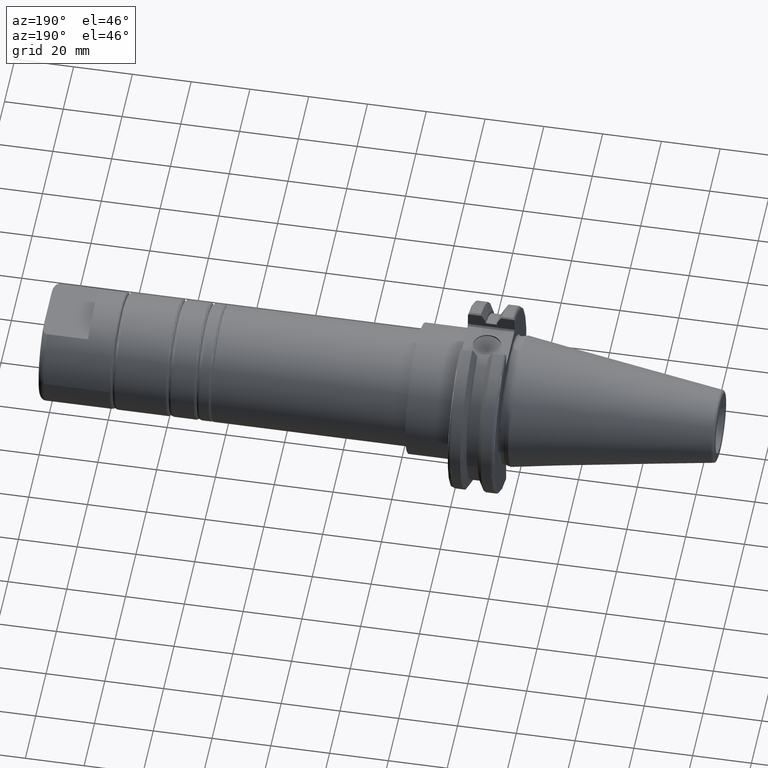
[diagram: clean part render]
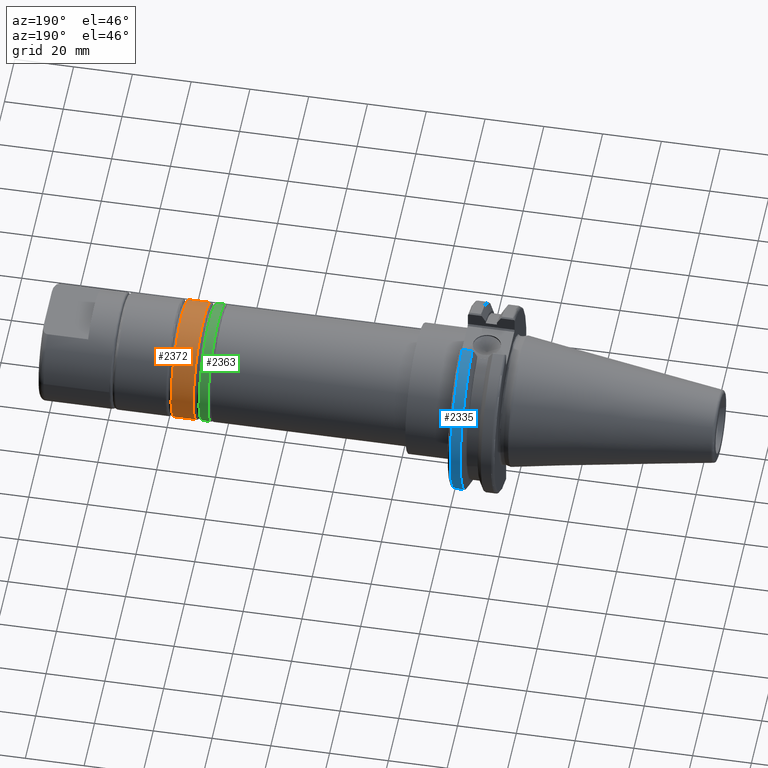
[diagram: same view with three faces highlighted in distinct colors, each labeled with its STEP entity id]
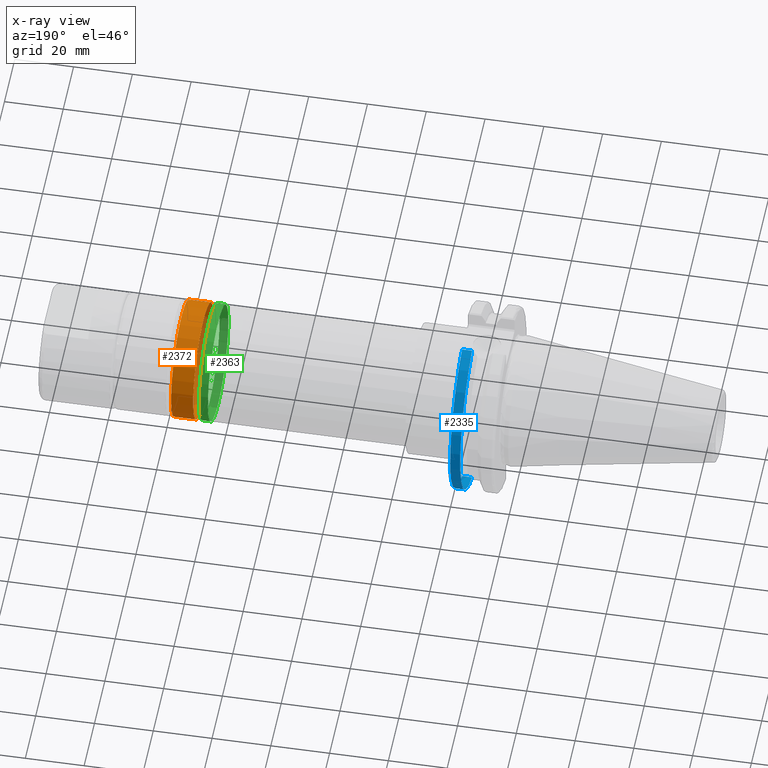
[diagram: x-ray of the same camera — body ghosted, the three highlighted faces saturated]
A machine part, auxiliary view with three faces highlighted in distinct colors.
The next image is the same camera in x-ray (body ghosted, the three faces saturated) — at least one of them is partly hidden behind the body in this view.
Their STEP definitions:

[orange] entity #2372 — the highlighted cylindrical surface (bore or boss wall) has radius 19.8 mm, axis along (1, 0, 0).
#644=CIRCLE('',#2782,19.8);
#645=CIRCLE('',#2783,19.8);
#648=CIRCLE('',#2787,19.8);
#649=CIRCLE('',#2788,19.8);
#727=CYLINDRICAL_SURFACE('',#2786,19.8);
#816=FACE_OUTER_BOUND('',#940,.T.);
#940=EDGE_LOOP('',(#2086,#2087,#2088,#2089,#2090,#2091));
#1076=LINE('',#4453,#1208);
#1208=VECTOR('',#3389,19.8);
#1371=VERTEX_POINT('',#4442);
#1372=VERTEX_POINT('',#4443);
#1374=VERTEX_POINT('',#4450);
#1375=VERTEX_POINT('',#4451);
#1616=EDGE_CURVE('',#1371,#1372,#644,.T.);
#1617=EDGE_CURVE('',#1372,#1371,#645,.T.);
#1620=EDGE_CURVE('',#1374,#1375,#648,.T.);
#1621=EDGE_CURVE('',#1374,#1372,#1076,.T.);
#1622=EDGE_CURVE('',#1375,#1374,#649,.T.);
#2086=ORIENTED_EDGE('',*,*,#1620,.F.);
#2087=ORIENTED_EDGE('',*,*,#1621,.T.);
#2088=ORIENTED_EDGE('',*,*,#1616,.F.);
#2089=ORIENTED_EDGE('',*,*,#1617,.F.);
#2090=ORIENTED_EDGE('',*,*,#1621,.F.);
#2091=ORIENTED_EDGE('',*,*,#1622,.F.);
#2372=ADVANCED_FACE('',(#816),#727,.T.);
#2782=AXIS2_PLACEMENT_3D('',#4444,#3377,#3378);
#2783=AXIS2_PLACEMENT_3D('',#4445,#3379,#3380);
#2786=AXIS2_PLACEMENT_3D('',#4449,#3385,#3386);
#2787=AXIS2_PLACEMENT_3D('',#4452,#3387,#3388);
#2788=AXIS2_PLACEMENT_3D('',#4454,#3390,#3391);
#3377=DIRECTION('center_axis',(-1.,0.,0.));
#3378=DIRECTION('ref_axis',(0.,-1.,1.83697019872103E-16));
#3379=DIRECTION('center_axis',(-1.,0.,0.));
#3380=DIRECTION('ref_axis',(0.,-1.,1.83697019872103E-16));
#3385=DIRECTION('center_axis',(1.,0.,0.));
#3386=DIRECTION('ref_axis',(0.,1.,0.));
#3387=DIRECTION('center_axis',(1.,0.,0.));
#3388=DIRECTION('ref_axis',(0.,-1.,1.83697019872103E-16));
#3389=DIRECTION('',(-1.,0.,0.));
#3390=DIRECTION('center_axis',(1.,0.,0.));
#3391=DIRECTION('ref_axis',(0.,-1.,1.83697019872103E-16));
#4442=CARTESIAN_POINT('',(-3.7625,-2.42480066231176E-15,19.8));
#4443=CARTESIAN_POINT('',(-3.7625,-19.8,-2.42480066231176E-15));
#4444=CARTESIAN_POINT('Origin',(-3.7625,0.,0.));
#4445=CARTESIAN_POINT('Origin',(-3.7625,0.,0.));
#4449=CARTESIAN_POINT('Origin',(0.,0.,0.));
#4450=CARTESIAN_POINT('',(3.7625,-19.8,-2.42480066231176E-15));
#4451=CARTESIAN_POINT('',(3.7625,-2.42480066231176E-15,19.8));
#4452=CARTESIAN_POINT('Origin',(3.7625,0.,0.));
#4453=CARTESIAN_POINT('',(0.,-19.8,-2.42480066231176E-15));
#4454=CARTESIAN_POINT('Origin',(3.7625,0.,0.));

[blue] entity #2335 — the highlighted cylindrical surface (partial cylindrical patch) has radius 31.75 mm, axis along (1, 0, 0).
#595=CIRCLE('',#2645,31.75);
#609=CIRCLE('',#2684,31.75);
#718=CYLINDRICAL_SURFACE('',#2683,31.75);
#779=FACE_OUTER_BOUND('',#899,.T.);
#899=EDGE_LOOP('',(#1925,#1926,#1927,#1928));
#1006=LINE('',#3864,#1138);
#1051=LINE('',#4124,#1183);
#1138=VECTOR('',#3037,10.);
#1183=VECTOR('',#3158,10.);
#1283=VERTEX_POINT('',#3838);
#1284=VERTEX_POINT('',#3847);
#1286=VERTEX_POINT('',#3860);
#1343=VERTEX_POINT('',#4122);
#1475=EDGE_CURVE('',#1283,#1284,#595,.T.);
#1479=EDGE_CURVE('',#1286,#1283,#1006,.T.);
#1561=EDGE_CURVE('',#1286,#1343,#609,.T.);
#1562=EDGE_CURVE('',#1284,#1343,#1051,.T.);
#1925=ORIENTED_EDGE('',*,*,#1475,.F.);
#1926=ORIENTED_EDGE('',*,*,#1479,.F.);
#1927=ORIENTED_EDGE('',*,*,#1561,.T.);
#1928=ORIENTED_EDGE('',*,*,#1562,.F.);
#2335=ADVANCED_FACE('',(#779),#718,.T.);
#2645=AXIS2_PLACEMENT_3D('',#3848,#3032,#3033);
#2683=AXIS2_PLACEMENT_3D('',#4121,#3154,#3155);
#2684=AXIS2_PLACEMENT_3D('',#4123,#3156,#3157);
#3032=DIRECTION('center_axis',(1.,0.,0.));
#3033=DIRECTION('ref_axis',(0.,1.,-6.12323399573676E-17));
#3037=DIRECTION('',(1.,0.,0.));
#3154=DIRECTION('center_axis',(1.,0.,0.));
#3155=DIRECTION('ref_axis',(0.,1.,0.));
#3156=DIRECTION('center_axis',(1.,0.,0.));
#3157=DIRECTION('ref_axis',(0.,0.,-1.));
#3158=DIRECTION('',(-1.,0.,0.));
#3838=CARTESIAN_POINT('',(18.05,8.67204822802685,-30.5427254764662));
#3847=CARTESIAN_POINT('',(18.05,8.67204822802685,30.5427254764662));
#3848=CARTESIAN_POINT('Origin',(18.05,0.,0.));
#3860=CARTESIAN_POINT('',(14.6531667690756,8.67204822802685,-30.5427254764662));
#3864=CARTESIAN_POINT('',(16.8515833845378,8.67204822802685,-30.5427254764662));
#4121=CARTESIAN_POINT('Origin',(16.8515833845378,0.,0.));
#4122=CARTESIAN_POINT('',(14.6531667690756,8.67204822802685,30.5427254764662));
#4123=CARTESIAN_POINT('Origin',(14.6531667690756,0.,0.));
#4124=CARTESIAN_POINT('',(16.8515833845378,8.67204822802685,30.5427254764662));

[green] entity #2363 — the highlighted cylindrical surface (bore or boss wall) has radius 19.8 mm, axis along (1, 0, 0).
#633=CIRCLE('',#2753,19.8);
#634=CIRCLE('',#2754,19.8);
#637=CIRCLE('',#2758,19.8);
#638=CIRCLE('',#2759,19.8);
#725=CYLINDRICAL_SURFACE('',#2757,19.8);
#807=FACE_OUTER_BOUND('',#929,.T.);
#929=EDGE_LOOP('',(#2044,#2045,#2046,#2047,#2048,#2049));
#1065=LINE('',#4375,#1197);
#1197=VECTOR('',#3320,19.8);
#1357=VERTEX_POINT('',#4364);
#1358=VERTEX_POINT('',#4365);
#1360=VERTEX_POINT('',#4372);
#1361=VERTEX_POINT('',#4373);
#1595=EDGE_CURVE('',#1357,#1358,#633,.T.);
#1596=EDGE_CURVE('',#1358,#1357,#634,.T.);
#1599=EDGE_CURVE('',#1360,#1361,#637,.T.);
#1600=EDGE_CURVE('',#1360,#1358,#1065,.T.);
#1601=EDGE_CURVE('',#1361,#1360,#638,.T.);
#2044=ORIENTED_EDGE('',*,*,#1599,.F.);
#2045=ORIENTED_EDGE('',*,*,#1600,.T.);
#2046=ORIENTED_EDGE('',*,*,#1595,.F.);
#2047=ORIENTED_EDGE('',*,*,#1596,.F.);
#2048=ORIENTED_EDGE('',*,*,#1600,.F.);
#2049=ORIENTED_EDGE('',*,*,#1601,.F.);
#2363=ADVANCED_FACE('',(#807),#725,.T.);
#2753=AXIS2_PLACEMENT_3D('',#4366,#3308,#3309);
#2754=AXIS2_PLACEMENT_3D('',#4367,#3310,#3311);
#2757=AXIS2_PLACEMENT_3D('',#4371,#3316,#3317);
#2758=AXIS2_PLACEMENT_3D('',#4374,#3318,#3319);
#2759=AXIS2_PLACEMENT_3D('',#4376,#3321,#3322);
#3308=DIRECTION('center_axis',(-1.,0.,0.));
#3309=DIRECTION('ref_axis',(0.,-1.,1.83697019872103E-16));
#3310=DIRECTION('center_axis',(-1.,0.,0.));
#3311=DIRECTION('ref_axis',(0.,-1.,1.83697019872103E-16));
#3316=DIRECTION('center_axis',(1.,0.,0.));
#3317=DIRECTION('ref_axis',(0.,1.,0.));
#3318=DIRECTION('center_axis',(1.,0.,0.));
#3319=DIRECTION('ref_axis',(0.,-1.,1.83697019872103E-16));
#3320=DIRECTION('',(-1.,0.,0.));
#3321=DIRECTION('center_axis',(1.,0.,0.));
#3322=DIRECTION('ref_axis',(0.,-1.,1.83697019872103E-16));
#4364=CARTESIAN_POINT('',(-1.5,-2.42480066231176E-15,19.8));
#4365=CARTESIAN_POINT('',(-1.5,-19.8,-2.42480066231176E-15));
#4366=CARTESIAN_POINT('Origin',(-1.5,0.,0.));
#4367=CARTESIAN_POINT('Origin',(-1.5,0.,0.));
#4371=CARTESIAN_POINT('Origin',(0.,0.,0.));
#4372=CARTESIAN_POINT('',(1.5,-19.8,-2.42480066231176E-15));
#4373=CARTESIAN_POINT('',(1.5,-2.42480066231176E-15,19.8));
#4374=CARTESIAN_POINT('Origin',(1.5,0.,0.));
#4375=CARTESIAN_POINT('',(0.,-19.8,-2.42480066231176E-15));
#4376=CARTESIAN_POINT('Origin',(1.5,0.,0.));